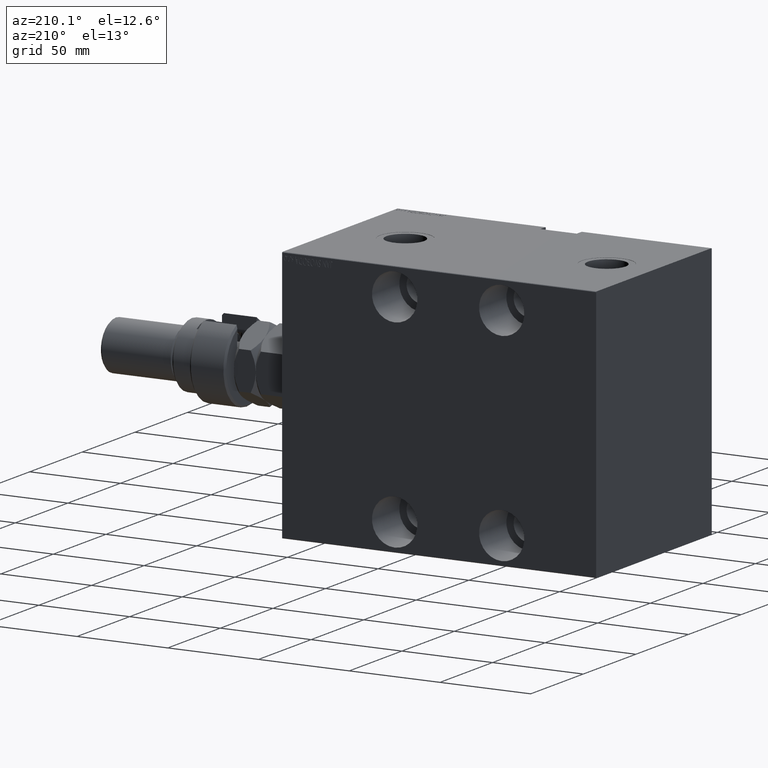
[diagram: clean part render]
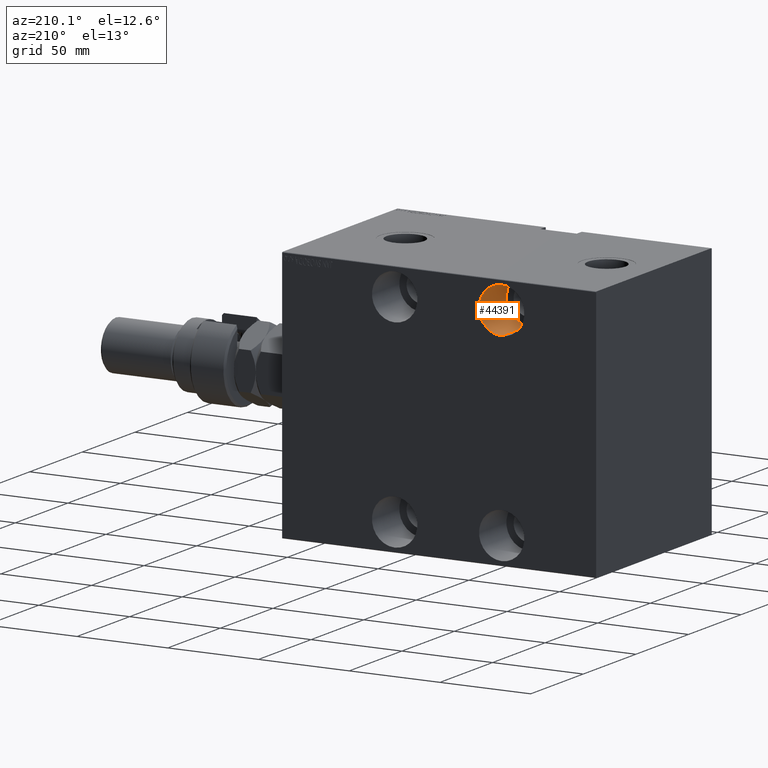
[diagram: same view with one face highlighted and labeled with its STEP entity id]
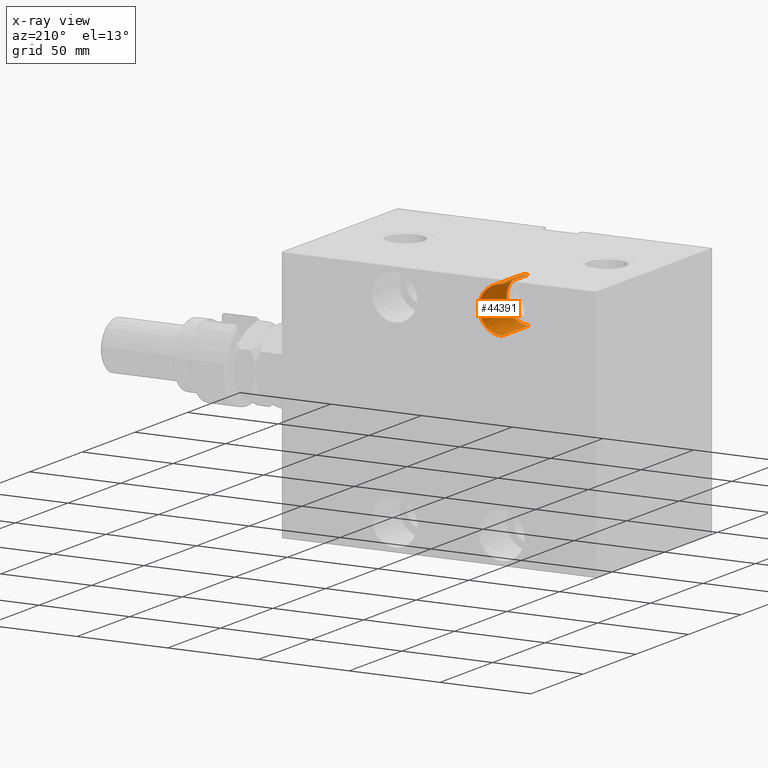
[diagram: x-ray of the same camera — body ghosted, the highlighted face saturated]
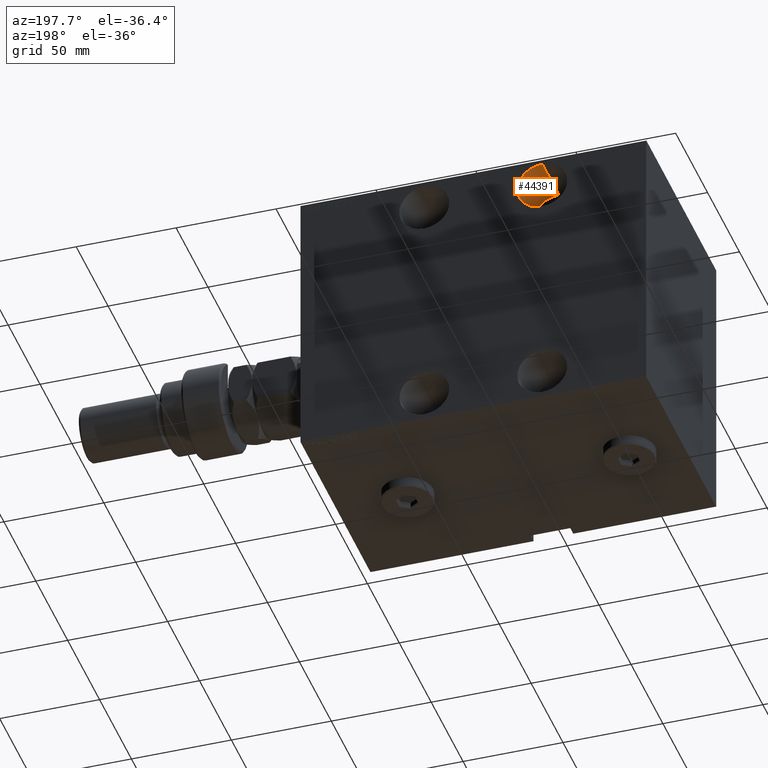
[diagram: same view with one face highlighted and labeled with its STEP entity id]
A machine part, auxiliary view. The second image highlights one B-rep face of the part: STEP entity #44391.
The next image is the same camera in x-ray: the body ghosted, the highlighted face saturated — about 0% of this face is hidden behind the body in this view.
A second angle (auxiliary view) of the same face is appended — the face is thin or edge-on in the first view.
In plain terms, the highlighted cylindrical surface (edge-blend (fillet) strip) has radius 12.5 mm, axis along (0, 1, -0).
Its self-contained STEP definition (entity closure, byte-faithful):
#521 = LINE ( 'NONE', #44715, #45594 ) ;
#1285 = VERTEX_POINT ( 'NONE', #22985 ) ;
#1414 = VECTOR ( 'NONE', #12913, 1000.000000000000000 ) ;
#1763 = DIRECTION ( 'NONE',  ( 0.000000000000000000, 0.000000000000000000, -1.000000000000000000 ) ) ;
#1913 = CARTESIAN_POINT ( 'NONE',  ( 120.9999999999999858, -28.99999999999999289, 67.49999999999997158 ) ) ;
#4670 = DIRECTION ( 'NONE',  ( 0.000000000000000000, 0.000000000000000000, -1.000000000000000000 ) ) ;
#5337 = DIRECTION ( 'NONE',  ( -0.000000000000000000, -1.000000000000000000, -0.000000000000000000 ) ) ;
#6300 = VERTEX_POINT ( 'NONE', #26636 ) ;
#6849 = AXIS2_PLACEMENT_3D ( 'NONE', #19780, #37719, #23129 ) ;
#12913 = DIRECTION ( 'NONE',  ( -0.000000000000000000, -1.000000000000000000, -0.000000000000000000 ) ) ;
#14580 = AXIS2_PLACEMENT_3D ( 'NONE', #38085, #5337, #1763 ) ;
#15647 = CARTESIAN_POINT ( 'NONE',  ( 120.9999999999999858, -54.99999999999999289, 42.50000000000000000 ) ) ;
#15666 = CARTESIAN_POINT ( 'NONE',  ( 120.9999999999999858, -54.99999999999999289, 54.99999999999999289 ) ) ;
#16262 = ORIENTED_EDGE ( 'NONE', *, *, #35594, .T. ) ;
#16297 = EDGE_CURVE ( 'NONE', #1285, #17853, #22094, .T. ) ;
#17853 = VERTEX_POINT ( 'NONE', #27363 ) ;
#19021 = DIRECTION ( 'NONE',  ( 0.000000000000000000, -1.000000000000000000, 0.000000000000000000 ) ) ;
#19780 = CARTESIAN_POINT ( 'NONE',  ( 120.9999999999999858, -28.99999999999999289, 54.99999999999999289 ) ) ;
#20640 = VERTEX_POINT ( 'NONE', #15647 ) ;
#22094 = CIRCLE ( 'NONE', #6849, 12.49999999999999112 ) ;
#22651 = EDGE_LOOP ( 'NONE', ( #44771, #16262, #27483, #24531 ) ) ;
#22985 = CARTESIAN_POINT ( 'NONE',  ( 120.9999999999999858, -28.99999999999999289, 67.49999999999997158 ) ) ;
#23129 = DIRECTION ( 'NONE',  ( 0.000000000000000000, 0.000000000000000000, -1.000000000000000000 ) ) ;
#24531 = ORIENTED_EDGE ( 'NONE', *, *, #29103, .F. ) ;
#26636 = CARTESIAN_POINT ( 'NONE',  ( 120.9999999999999858, -54.99999999999999289, 67.49999999999997158 ) ) ;
#27084 = CYLINDRICAL_SURFACE ( 'NONE', #14580, 12.49999999999999112 ) ;
#27363 = CARTESIAN_POINT ( 'NONE',  ( 120.9999999999999858, -28.99999999999999289, 42.50000000000000000 ) ) ;
#27483 = ORIENTED_EDGE ( 'NONE', *, *, #43144, .T. ) ;
#29103 = EDGE_CURVE ( 'NONE', #17853, #20640, #521, .T. ) ;
#29158 = CIRCLE ( 'NONE', #42924, 12.49999999999999112 ) ;
#34744 = FACE_OUTER_BOUND ( 'NONE', #22651, .T. ) ;
#35594 = EDGE_CURVE ( 'NONE', #1285, #6300, #41359, .T. ) ;
#37084 = DIRECTION ( 'NONE',  ( -0.000000000000000000, -1.000000000000000000, -0.000000000000000000 ) ) ;
#37719 = DIRECTION ( 'NONE',  ( 0.000000000000000000, -1.000000000000000000, 0.000000000000000000 ) ) ;
#38085 = CARTESIAN_POINT ( 'NONE',  ( 120.9999999999999858, -28.99999999999999289, 54.99999999999999289 ) ) ;
#41359 = LINE ( 'NONE', #1913, #1414 ) ;
#42924 = AXIS2_PLACEMENT_3D ( 'NONE', #15666, #19021, #4670 ) ;
#43144 = EDGE_CURVE ( 'NONE', #6300, #20640, #29158, .T. ) ;
#44391 = ADVANCED_FACE ( 'NONE', ( #34744 ), #27084, .F. ) ;
#44715 = CARTESIAN_POINT ( 'NONE',  ( 120.9999999999999858, -28.99999999999999289, 42.50000000000000000 ) ) ;
#44771 = ORIENTED_EDGE ( 'NONE', *, *, #16297, .F. ) ;
#45594 = VECTOR ( 'NONE', #37084, 1000.000000000000000 ) ;